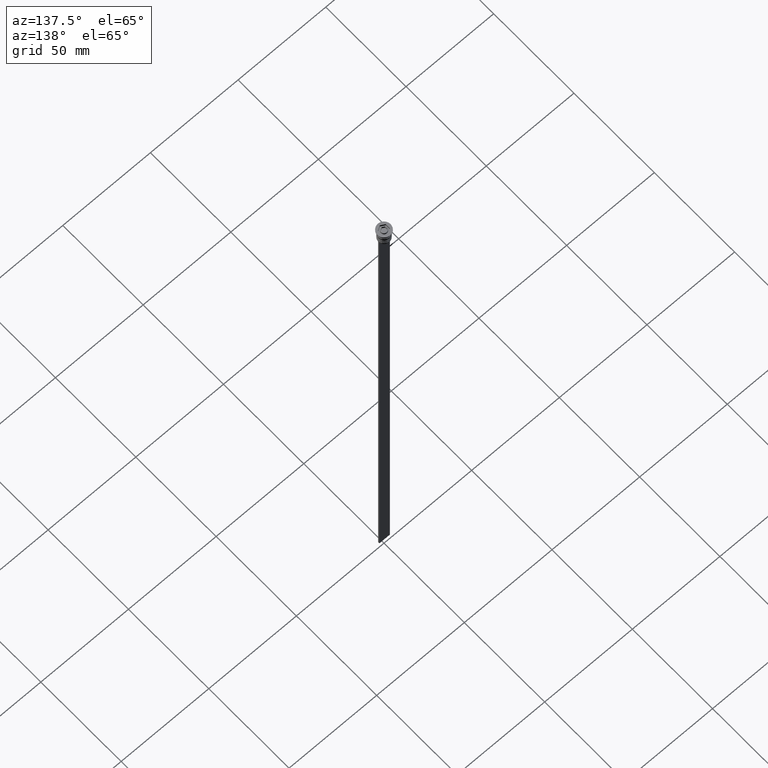
[diagram: clean part render]
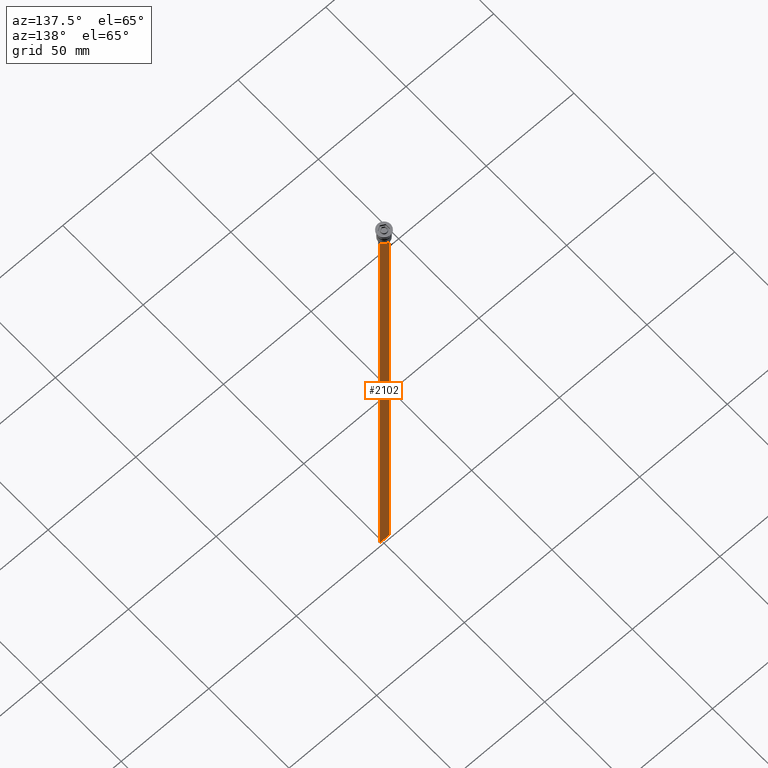
[diagram: same view with one face highlighted and labeled with its STEP entity id]
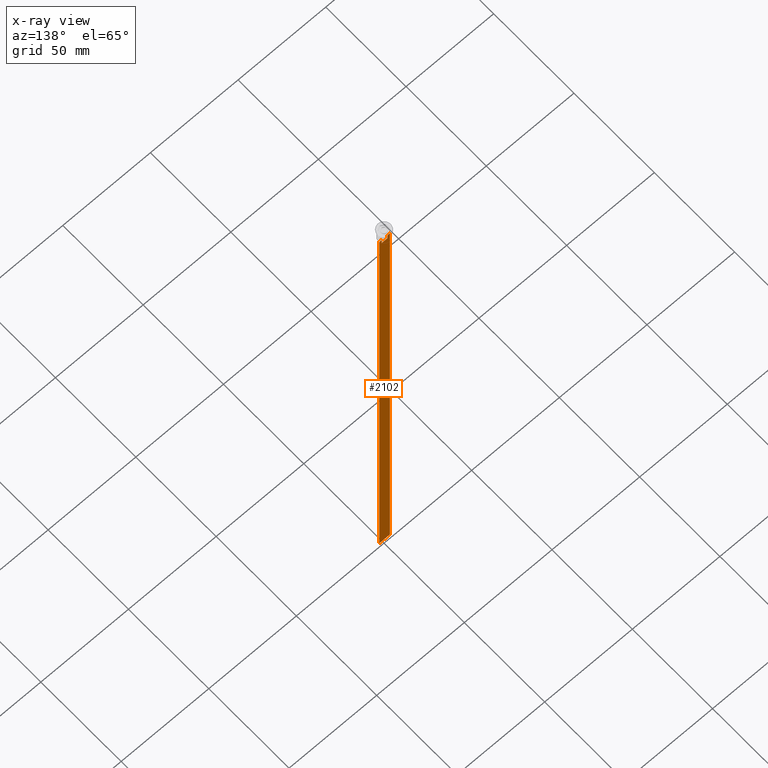
[diagram: x-ray of the same camera — body ghosted, the highlighted face saturated]
A machine part, auxiliary view. The second image highlights one B-rep face of the part: STEP entity #2102.
The next image is the same camera in x-ray: the body ghosted, the highlighted face saturated — about 0% of this face is hidden behind the body in this view.
In plain terms, the highlighted planar face has unit normal (0, -1, -0).
Its self-contained STEP definition (entity closure, byte-faithful):
#2 = ORIENTED_EDGE ( 'NONE', *, *, #952, .T. ) ;
#19 = DIRECTION ( 'NONE',  ( 0.000000000000000000, 0.000000000000000000, -1.000000000000000000 ) ) ;
#54 = VERTEX_POINT ( 'NONE', #1974 ) ;
#75 = ORIENTED_EDGE ( 'NONE', *, *, #457, .T. ) ;
#80 = DIRECTION ( 'NONE',  ( 1.000000000000000000, 0.000000000000000000, 0.000000000000000000 ) ) ;
#106 = DIRECTION ( 'NONE',  ( 0.000000000000000000, 0.000000000000000000, -1.000000000000000000 ) ) ;
#108 = EDGE_CURVE ( 'NONE', #894, #955, #2126, .T. ) ;
#125 = PLANE ( 'NONE',  #367 ) ;
#161 = VECTOR ( 'NONE', #106, 1000.000000000000000 ) ;
#169 = LINE ( 'NONE', #826, #374 ) ;
#186 = LINE ( 'NONE', #1524, #510 ) ;
#207 = EDGE_CURVE ( 'NONE', #626, #894, #186, .T. ) ;
#229 = CARTESIAN_POINT ( 'NONE',  ( 2.121320343559647270, 0.3500000000000000333, -7.500000000000000000 ) ) ;
#306 = DIRECTION ( 'NONE',  ( 1.000000000000000000, 0.000000000000000000, 0.000000000000000000 ) ) ;
#354 = EDGE_CURVE ( 'NONE', #54, #2084, #1606, .T. ) ;
#367 = AXIS2_PLACEMENT_3D ( 'NONE', #420, #1287, #773 ) ;
#374 = VECTOR ( 'NONE', #2164, 1000.000000000000000 ) ;
#395 = VERTEX_POINT ( 'NONE', #229 ) ;
#420 = CARTESIAN_POINT ( 'NONE',  ( 2.999999999999995559, 0.3500000000000000333, -1.459304675784417915 ) ) ;
#422 = CARTESIAN_POINT ( 'NONE',  ( 1.612451549659713601, 0.3500000000000000333, -8.000000000000000000 ) ) ;
#424 = CARTESIAN_POINT ( 'NONE',  ( -2.121320343559647270, 0.3500000000000000333, -7.500000000000000000 ) ) ;
#454 = ORIENTED_EDGE ( 'NONE', *, *, #981, .T. ) ;
#457 = EDGE_CURVE ( 'NONE', #1970, #626, #1495, .T. ) ;
#470 = VERTEX_POINT ( 'NONE', #2176 ) ;
#500 = CARTESIAN_POINT ( 'NONE',  ( 1.782523989086206795, 0.3500000000000000333, -7.833797837268088315 ) ) ;
#510 = VECTOR ( 'NONE', #19, 1000.000000000000000 ) ;
#554 = CARTESIAN_POINT ( 'NONE',  ( -1.612451549659713601, 0.3500000000000000333, -8.000000000000000000 ) ) ;
#566 = EDGE_CURVE ( 'NONE', #1896, #2084, #169, .T. ) ;
#626 = VERTEX_POINT ( 'NONE', #1870 ) ;
#677 = EDGE_LOOP ( 'NONE', ( #1628, #75, #1717, #2127, #720, #1586, #454, #2, #1928, #2069 ) ) ;
#720 = ORIENTED_EDGE ( 'NONE', *, *, #1963, .T. ) ;
#731 = VECTOR ( 'NONE', #1661, 1000.000000000000000 ) ;
#773 = DIRECTION ( 'NONE',  ( 0.000000000000000000, 0.000000000000000000, -1.000000000000000000 ) ) ;
#826 = CARTESIAN_POINT ( 'NONE',  ( 2.999999999999995559, 0.3500000000000000333, -307.5000000000000000 ) ) ;
#838 = CARTESIAN_POINT ( 'NONE',  ( 2.999999999999995559, 0.3500000000000000333, -1.459304675784417915 ) ) ;
#847 = CARTESIAN_POINT ( 'NONE',  ( 1.612451549659713601, 0.3500000000000000333, -10.49999999999999822 ) ) ;
#859 = LINE ( 'NONE', #838, #731 ) ;
#875 = CARTESIAN_POINT ( 'NONE',  ( 2.999999999999995559, 0.3500000000000000333, -307.5000000000000000 ) ) ;
#894 = VERTEX_POINT ( 'NONE', #1010 ) ;
#919 = CARTESIAN_POINT ( 'NONE',  ( -3.000000000000004441, 0.3500000000000000333, -1.459304675784417915 ) ) ;
#952 = EDGE_CURVE ( 'NONE', #470, #1896, #859, .T. ) ;
#955 = VERTEX_POINT ( 'NONE', #847 ) ;
#981 = EDGE_CURVE ( 'NONE', #395, #470, #1381, .T. ) ;
#1010 = CARTESIAN_POINT ( 'NONE',  ( -1.612451549659713601, 0.3500000000000000333, -10.49999999999999822 ) ) ;
#1054 = CARTESIAN_POINT ( 'NONE',  ( 2.999999999999995559, 0.3500000000000000333, -7.500000000000000000 ) ) ;
#1097 = FACE_OUTER_BOUND ( 'NONE', #677, .T. ) ;
#1172 = CARTESIAN_POINT ( 'NONE',  ( 2.121320343559647270, 0.3500000000000000333, -7.500000000000000000 ) ) ;
#1220 = VECTOR ( 'NONE', #80, 1000.000000000000000 ) ;
#1222 = LINE ( 'NONE', #1530, #1787 ) ;
#1233 = VERTEX_POINT ( 'NONE', #422 ) ;
#1250 = CARTESIAN_POINT ( 'NONE',  ( -1.952043732028445167, 0.3500000000000000333, -7.667018567316270961 ) ) ;
#1287 = DIRECTION ( 'NONE',  ( 0.000000000000000000, -1.000000000000000000, -0.000000000000000000 ) ) ;
#1377 = DIRECTION ( 'NONE',  ( -0.000000000000000000, -0.000000000000000000, 1.000000000000000000 ) ) ;
#1381 = LINE ( 'NONE', #1054, #1220 ) ;
#1488 = VECTOR ( 'NONE', #1377, 1000.000000000000000 ) ;
#1495 = B_SPLINE_CURVE_WITH_KNOTS ( 'NONE', 3,
 ( #424, #1250, #1921, #554 ),
 .UNSPECIFIED., .F., .F.,
 ( 4, 4 ),
 ( 0.003684653461239336628, 0.004398058763641255961 ),
 .UNSPECIFIED. ) ;
#1524 = CARTESIAN_POINT ( 'NONE',  ( -1.612451549659713601, 0.3500000000000000333, 0.000000000000000000 ) ) ;
#1530 = CARTESIAN_POINT ( 'NONE',  ( 2.999999999999995559, 0.3500000000000000333, -7.500000000000000000 ) ) ;
#1549 = EDGE_CURVE ( 'NONE', #54, #1970, #1222, .T. ) ;
#1586 = ORIENTED_EDGE ( 'NONE', *, *, #1818, .T. ) ;
#1606 = LINE ( 'NONE', #919, #161 ) ;
#1628 = ORIENTED_EDGE ( 'NONE', *, *, #1549, .T. ) ;
#1661 = DIRECTION ( 'NONE',  ( 0.000000000000000000, 0.000000000000000000, -1.000000000000000000 ) ) ;
#1668 = VECTOR ( 'NONE', #306, 1000.000000000000000 ) ;
#1717 = ORIENTED_EDGE ( 'NONE', *, *, #207, .T. ) ;
#1748 = B_SPLINE_CURVE_WITH_KNOTS ( 'NONE', 3,
 ( #2010, #500, #1857, #1172 ),
 .UNSPECIFIED., .F., .F.,
 ( 4, 4 ),
 ( 0.008600796474521226961, 0.009317962624906524910 ),
 .UNSPECIFIED. ) ;
#1787 = VECTOR ( 'NONE', #2039, 1000.000000000000000 ) ;
#1818 = EDGE_CURVE ( 'NONE', #1233, #395, #1748, .T. ) ;
#1857 = CARTESIAN_POINT ( 'NONE',  ( 1.952040775369266346, 0.3500000000000000333, -7.667021484535463394 ) ) ;
#1870 = CARTESIAN_POINT ( 'NONE',  ( -1.612451549659713601, 0.3500000000000000333, -8.000000000000000000 ) ) ;
#1896 = VERTEX_POINT ( 'NONE', #875 ) ;
#1921 = CARTESIAN_POINT ( 'NONE',  ( -1.782527878033863589, 0.3500000000000000333, -7.833794036819862860 ) ) ;
#1928 = ORIENTED_EDGE ( 'NONE', *, *, #566, .T. ) ;
#1937 = CARTESIAN_POINT ( 'NONE',  ( -3.000000000000004441, 0.3500000000000000333, -307.5000000000000000 ) ) ;
#1963 = EDGE_CURVE ( 'NONE', #955, #1233, #2046, .T. ) ;
#1970 = VERTEX_POINT ( 'NONE', #2058 ) ;
#1974 = CARTESIAN_POINT ( 'NONE',  ( -3.000000000000004441, 0.3499999999999999223, -7.500000000000000000 ) ) ;
#2010 = CARTESIAN_POINT ( 'NONE',  ( 1.612451549659713601, 0.3500000000000000333, -8.000000000000000000 ) ) ;
#2039 = DIRECTION ( 'NONE',  ( 1.000000000000000000, 0.000000000000000000, 0.000000000000000000 ) ) ;
#2046 = LINE ( 'NONE', #2083, #1488 ) ;
#2058 = CARTESIAN_POINT ( 'NONE',  ( -2.121320343559647270, 0.3500000000000000333, -7.500000000000000000 ) ) ;
#2069 = ORIENTED_EDGE ( 'NONE', *, *, #354, .F. ) ;
#2083 = CARTESIAN_POINT ( 'NONE',  ( 1.612451549659713601, 0.3500000000000000333, 0.000000000000000000 ) ) ;
#2084 = VERTEX_POINT ( 'NONE', #1937 ) ;
#2102 = ADVANCED_FACE ( 'NONE', ( #1097 ), #125, .F. ) ;
#2126 = LINE ( 'NONE', #2167, #1668 ) ;
#2127 = ORIENTED_EDGE ( 'NONE', *, *, #108, .T. ) ;
#2164 = DIRECTION ( 'NONE',  ( -1.000000000000000000, 0.000000000000000000, 0.000000000000000000 ) ) ;
#2167 = CARTESIAN_POINT ( 'NONE',  ( 0.000000000000000000, 0.3500000000000000333, -10.49999999999999822 ) ) ;
#2176 = CARTESIAN_POINT ( 'NONE',  ( 2.999999999999995559, 0.3500000000000000333, -7.500000000000000000 ) ) ;